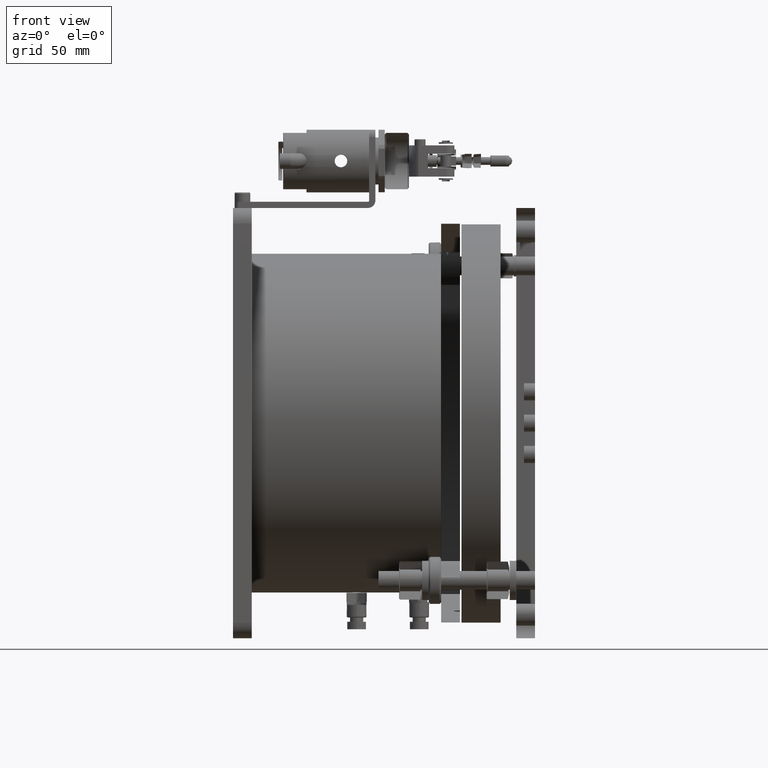
[diagram: clean part render]
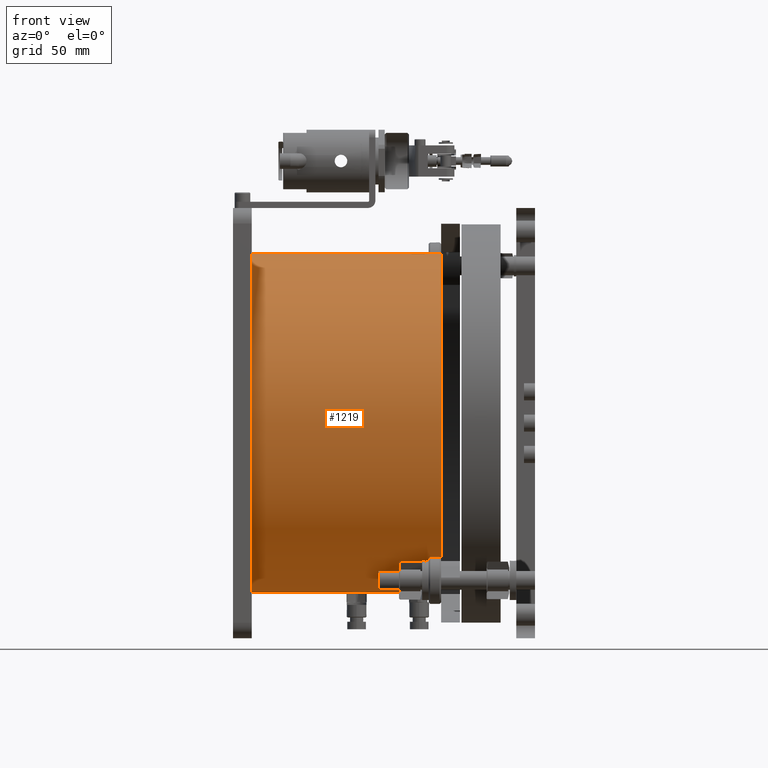
[diagram: same view with one face highlighted and labeled with its STEP entity id]
A machine part, front view. The second image highlights one B-rep face of the part: STEP entity #1219.
In plain terms, the highlighted cylindrical surface (bore or boss wall) has radius 108.25 mm, axis along (-1, -0, 0).
Its self-contained STEP definition (entity closure, byte-faithful):
#47 = ORIENTED_EDGE ( 'NONE', *, *, #12627, .T. ) ;
#77 = CARTESIAN_POINT ( 'NONE',  ( 700.2532529064187656, -11.07306532472164484, 426.0684939441116512 ) ) ;
#382 = B_SPLINE_CURVE_WITH_KNOTS ( 'NONE', 3,
 ( #11379, #17438, #11514, #15338, #19537, #23593, #17567, #19396, #1395, #21625, #25679, #15595, #9551, #9417, #5598, #3750, #25549, #9677 ),
 .UNSPECIFIED., .F., .F.,
 ( 4, 2, 2, 2, 2, 2, 2, 2, 4 ),
 ( 0.000000000000000000, 0.1250000000000000000, 0.2500000000000000000, 0.3750000000000000000, 0.5000000000000000000, 0.6250000000000000000, 0.7500000000000000000, 0.8750000000000000000, 1.000000000000000000 ),
 .UNSPECIFIED. ) ;
#425 = CARTESIAN_POINT ( 'NONE',  ( 690.2532529064185383, -11.07306532472163241, 317.8184939441116512 ) ) ;
#449 = B_SPLINE_CURVE_WITH_KNOTS ( 'NONE', 3,
 ( #2237, #6074, #21700, #17904, #11982, #11844, #3700, #11711, #20001, #5804, #18025, #24054, #18669, #18279, #6323, #20386, #10397, #6455 ),
 .UNSPECIFIED., .F., .F.,
 ( 4, 2, 2, 2, 2, 2, 2, 2, 4 ),
 ( 0.000000000000000000, 0.1250000000000000000, 0.2500000000000000000, 0.3750000000000000000, 0.5000000000000000000, 0.6250000000000000000, 0.7500000000000000000, 0.8750000000000000000, 1.000000000000000000 ),
 .UNSPECIFIED. ) ;
#599 = CARTESIAN_POINT ( 'NONE',  ( 645.7260323651624958, -7.072553334440932815, 317.8924411224286928 ) ) ;
#695 = CARTESIAN_POINT ( 'NONE',  ( 686.7871358114842906, -7.073580089219439593, 317.8924031563829544 ) ) ;
#1091 = CARTESIAN_POINT ( 'NONE',  ( 684.2326183006381370, -14.56557884291031613, 317.8746584292948114 ) ) ;
#1214 = CARTESIAN_POINT ( 'NONE',  ( 682.2532529064185383, -11.07306532472163241, 317.8184939441116512 ) ) ;
#1219 = ADVANCED_FACE ( 'NONE', ( #12040, #25948, #23594, #1649, #19788 ), #7967, .T. ) ;
#1395 = CARTESIAN_POINT ( 'NONE',  ( 647.7808918656851347, 97.10299870412202949, 430.0687028475880993 ) ) ;
#1439 = CARTESIAN_POINT ( 'NONE',  ( 650.2532529064185383, -11.60345801256245934, 317.8184939441116512 ) ) ;
#1649 = FACE_OUTER_BOUND ( 'NONE', #21337, .T. ) ;
#1690 = CARTESIAN_POINT ( 'NONE',  ( 643.8001588424508554, -14.27670912157059391, 317.8652607773717023 ) ) ;
#2237 = CARTESIAN_POINT ( 'NONE',  ( 643.2532529064185383, 97.17693467527836049, 426.0684939441120491 ) ) ;
#2506 = EDGE_LOOP ( 'NONE', ( #10524 ) ) ;
#2814 = CARTESIAN_POINT ( 'NONE',  ( 689.7458934701613771, -13.09361411960263766, 317.8362436395428858 ) ) ;
#2825 = VERTEX_POINT ( 'NONE', #17802 ) ;
#2881 = CARTESIAN_POINT ( 'NONE',  ( 700.2532529064187656, -11.07306532472164484, 534.3184939441116512 ) ) ;
#2922 = CARTESIAN_POINT ( 'NONE',  ( 685.7260323650199325, -7.072553334417378323, 317.8924411224295454 ) ) ;
#2937 = CARTESIAN_POINT ( 'NONE',  ( 685.2116492825764453, -14.97126875585755457, 317.8885156482574530 ) ) ;
#2985 = B_SPLINE_CURVE_WITH_KNOTS ( 'NONE', 3,
 ( #1214, #23022, #25384, #15162, #24989, #9238, #1091, #2937, #25243, #3326, #3201, #6889, #3069, #18962, #2814, #5296, #7405, #19091 ),
 .UNSPECIFIED., .F., .F.,
 ( 4, 2, 2, 2, 2, 2, 2, 2, 4 ),
 ( 0.000000000000000000, 0.1250000000000000000, 0.2500000000000000000, 0.3750000000000000000, 0.5000000000000000000, 0.6250000000000000000, 0.7500000000000000000, 0.8750000000000000000, 1.000000000000000000 ),
 .UNSPECIFIED. ) ;
#3069 = CARTESIAN_POINT ( 'NONE',  ( 688.7056298185452761, -14.27734918478035020, 317.8652780285796098 ) ) ;
#3125 = VERTEX_POINT ( 'NONE', #23241 ) ;
#3201 = CARTESIAN_POINT ( 'NONE',  ( 687.2920411004657808, -14.97207916232168934, 317.8885448993094656 ) ) ;
#3326 = CARTESIAN_POINT ( 'NONE',  ( 686.7818994696300479, -15.07332420306058651, 317.8924317631767735 ) ) ;
#3700 = CARTESIAN_POINT ( 'NONE',  ( 645.2347160620475961, 97.12072703863161394, 422.5746496025880106 ) ) ;
#3750 = CARTESIAN_POINT ( 'NONE',  ( 643.3548699813301255, 97.17303636025633296, 427.1098367668176365 ) ) ;
#4370 = CARTESIAN_POINT ( 'NONE',  ( 685.2145084821797809, -7.174106389974516773, 317.8885433857593057 ) ) ;
#4404 = CARTESIAN_POINT ( 'NONE',  ( 642.2532529064186519, -11.07306532472163241, 317.8184939441116512 ) ) ;
#4441 = EDGE_CURVE ( 'NONE', #21964, #3125, #14896, .T. ) ;
#4729 = EDGE_CURVE ( 'NONE', #9466, #17486, #449, .T. ) ;
#4787 = CARTESIAN_POINT ( 'NONE',  ( 649.7466672852682450, -9.053933375062566569, 317.8362189832459990 ) ) ;
#5079 = ORIENTED_EDGE ( 'NONE', *, *, #4729, .T. ) ;
#5296 = CARTESIAN_POINT ( 'NONE',  ( 690.1517810191671742, -12.11366428773421688, 317.8223864980630538 ) ) ;
#5598 = CARTESIAN_POINT ( 'NONE',  ( 643.7613382809771565, 97.15916100002374378, 428.0904013747540944 ) ) ;
#5710 = ORIENTED_EDGE ( 'NONE', *, *, #10242, .T. ) ;
#5804 = CARTESIAN_POINT ( 'NONE',  ( 647.7877025562813742, 97.10302369762209196, 422.0689609655674417 ) ) ;
#5908 = CARTESIAN_POINT ( 'NONE',  ( 648.2726707881683978, -14.56643781355083078, 317.8746862058860643 ) ) ;
#6074 = CARTESIAN_POINT ( 'NONE',  ( 643.2532529064186519, 97.17693467527836049, 425.5365772426230251 ) ) ;
#6323 = CARTESIAN_POINT ( 'NONE',  ( 650.7472016573398150, 97.15922796064094769, 424.0502917576282584 ) ) ;
#6394 = CARTESIAN_POINT ( 'NONE',  ( 645.2145084815258542, -7.174106390327147587, 317.8885433857472549 ) ) ;
#6416 = CARTESIAN_POINT ( 'NONE',  ( 651.2532526538038837, 97.17693466594387530, 426.0699155339273148 ) ) ;
#6455 = CARTESIAN_POINT ( 'NONE',  ( 651.2532526538038837, 97.17693466594387530, 426.0699155339273148 ) ) ;
#6738 = CARTESIAN_POINT ( 'NONE',  ( 689.7466672840281490, -9.053933373649273975, 317.8362189832660079 ) ) ;
#6774 = CARTESIAN_POINT ( 'NONE',  ( 649.4582030330464022, -8.621708062616384893, 317.8456029818654542 ) ) ;
#6889 = CARTESIAN_POINT ( 'NONE',  ( 688.2726707878020989, -14.56643781361975698, 317.8746862058885085 ) ) ;
#6935 = EDGE_LOOP ( 'NONE', ( #47, #19929 ) ) ;
#7037 = DIRECTION ( 'NONE',  ( 0.000000000000000000, 0.000000000000000000, 1.000000000000000000 ) ) ;
#7158 = CARTESIAN_POINT ( 'NONE',  ( 579.2532529064187656, -11.07306532472164484, 426.0684939441116512 ) ) ;
#7260 = EDGE_CURVE ( 'NONE', #17486, #9466, #382, .T. ) ;
#7405 = CARTESIAN_POINT ( 'NONE',  ( 690.2532529064188793, -11.60345801184056569, 317.8184939441116512 ) ) ;
#7660 = AXIS2_PLACEMENT_3D ( 'NONE', #77, #8100, #25818 ) ;
#7750 = CARTESIAN_POINT ( 'NONE',  ( 649.7458934701612634, -13.09361411888082039, 317.8362436395325972 ) ) ;
#7967 = CYLINDRICAL_SURFACE ( 'NONE', #7660, 108.2500000000000142 ) ;
#8100 = DIRECTION ( 'NONE',  ( -1.000000000000000000, -4.379057701015054319E-47, 6.008901426488168198E-32 ) ) ;
#8355 = CARTESIAN_POINT ( 'NONE',  ( 648.2772941819438302, -7.582448135356381513, 317.8745960940942155 ) ) ;
#8447 = CARTESIAN_POINT ( 'NONE',  ( 688.2772941820876440, -7.582448135333192063, 317.8745960940950681 ) ) ;
#8710 = CARTESIAN_POINT ( 'NONE',  ( 682.7634336881162653, -9.047245770392375874, 317.8363367705403562 ) ) ;
#9238 = CARTESIAN_POINT ( 'NONE',  ( 683.8001588424506281, -14.27670912157050154, 317.8652607773715886 ) ) ;
#9417 = CARTESIAN_POINT ( 'NONE',  ( 644.0501633663981238, 97.14976826451520253, 428.5223453299533389 ) ) ;
#9466 = VERTEX_POINT ( 'NONE', #18249 ) ;
#9551 = CARTESIAN_POINT ( 'NONE',  ( 644.8000052359938081, 97.13017195237284795, 429.2720137995572713 ) ) ;
#9677 = CARTESIAN_POINT ( 'NONE',  ( 643.2532529064185383, 97.17693467527836049, 426.0684939441120491 ) ) ;
#9749 = EDGE_LOOP ( 'NONE', ( #21760, #5079 ) ) ;
#10242 = EDGE_CURVE ( 'NONE', #3125, #21964, #2985, .T. ) ;
#10397 = CARTESIAN_POINT ( 'NONE',  ( 651.2534410396820022, 97.17694162708443173, 425.5398445841693160 ) ) ;
#10524 = ORIENTED_EDGE ( 'NONE', *, *, #24467, .T. ) ;
#10552 = CARTESIAN_POINT ( 'NONE',  ( 683.0518780872037041, -8.617037636858086103, 317.8457112170919459 ) ) ;
#11054 = B_SPLINE_CURVE_WITH_KNOTS ( 'NONE', 3,
 ( #14667, #18344, #20445, #4787, #6774, #20825, #8355, #24361, #14796, #599, #6394, #14412, #12690, #12824, #22397, #24875, #20694, #4404 ),
 .UNSPECIFIED., .F., .F.,
 ( 4, 2, 2, 2, 2, 2, 2, 2, 4 ),
 ( 0.000000000000000000, 0.1250000000000000000, 0.2500000000000000000, 0.3750000000000000000, 0.5000000000000000000, 0.6250000000000000000, 0.7500000000000000000, 0.8750000000000000000, 1.000000000000000000 ),
 .UNSPECIFIED. ) ;
#11289 = CARTESIAN_POINT ( 'NONE',  ( 650.2532529064185383, -11.07306532472163241, 317.8184939441116512 ) ) ;
#11379 = CARTESIAN_POINT ( 'NONE',  ( 651.2532526538038837, 97.17693466594387530, 426.0699155339273148 ) ) ;
#11514 = CARTESIAN_POINT ( 'NONE',  ( 651.1515679928241980, 97.17303491980662500, 427.1099717196890424 ) ) ;
#11556 = CARTESIAN_POINT ( 'NONE',  ( 648.7056298188458641, -14.27734918477695558, 317.8652780285794393 ) ) ;
#11604 = DIRECTION ( 'NONE',  ( -1.000000000000000000, -4.379057701015054319E-47, 6.008901426488168198E-32 ) ) ;
#11711 = CARTESIAN_POINT ( 'NONE',  ( 646.2155082878143730, 97.10687190121917922, 422.1691560466356350 ) ) ;
#11844 = CARTESIAN_POINT ( 'NONE',  ( 644.8023228714886272, 97.13011737049934879, 422.8631512562729995 ) ) ;
#11982 = CARTESIAN_POINT ( 'NONE',  ( 644.0518408640415373, 97.14971846966072633, 423.6124738065262250 ) ) ;
#11984 = CIRCLE ( 'NONE', #16186, 108.2500000000000142 ) ;
#12040 = FACE_OUTER_BOUND ( 'NONE', #2506, .T. ) ;
#12403 = CARTESIAN_POINT ( 'NONE',  ( 683.8017825756013508, -7.868232502931086891, 317.8652970423210604 ) ) ;
#12627 = EDGE_CURVE ( 'NONE', #18600, #2825, #11054, .T. ) ;
#12690 = CARTESIAN_POINT ( 'NONE',  ( 643.8017825759028483, -7.868232502929709327, 317.8652970423211173 ) ) ;
#12824 = CARTESIAN_POINT ( 'NONE',  ( 643.0518780869024340, -8.617037636859464556, 317.8457112170917753 ) ) ;
#13324 = EDGE_CURVE ( 'NONE', #2825, #18600, #17916, .T. ) ;
#13409 = CARTESIAN_POINT ( 'NONE',  ( 647.2920411000997092, -14.97207916239061376, 317.8885448993119098 ) ) ;
#13533 = VERTEX_POINT ( 'NONE', #25321 ) ;
#13677 = CARTESIAN_POINT ( 'NONE',  ( 645.7217622965218879, -15.07280594086863701, 317.8924125995242775 ) ) ;
#14379 = CARTESIAN_POINT ( 'NONE',  ( 688.7091348358393361, -7.871548943158642508, 317.8651965197195182 ) ) ;
#14412 = CARTESIAN_POINT ( 'NONE',  ( 644.2347250561241481, -7.579251691576030403, 317.8747009156798526 ) ) ;
#14637 = CARTESIAN_POINT ( 'NONE',  ( 684.2347250554703351, -7.579251691928755363, 317.8747009156678587 ) ) ;
#14667 = CARTESIAN_POINT ( 'NONE',  ( 650.2532529064185383, -11.07306532472163241, 317.8184939441116512 ) ) ;
#14796 = CARTESIAN_POINT ( 'NONE',  ( 646.7871358113418410, -7.073580089195978360, 317.8924031563838639 ) ) ;
#14896 = B_SPLINE_CURVE_WITH_KNOTS ( 'NONE', 3,
 ( #425, #18564, #22752, #6738, #22619, #14379, #8447, #22361, #695, #2922, #4370, #14637, #12403, #10552, #8710, #16474, #20416, #22494 ),
 .UNSPECIFIED., .F., .F.,
 ( 4, 2, 2, 2, 2, 2, 2, 2, 4 ),
 ( 0.000000000000000000, 0.1250000000000000000, 0.2500000000000000000, 0.3750000000000000000, 0.5000000000000000000, 0.6250000000000000000, 0.7500000000000000000, 0.8750000000000000000, 1.000000000000000000 ),
 .UNSPECIFIED. ) ;
#15102 = VERTEX_POINT ( 'NONE', #2881 ) ;
#15162 = CARTESIAN_POINT ( 'NONE',  ( 682.7612090427101066, -13.09466758518914631, 317.8362640474380783 ) ) ;
#15338 = CARTESIAN_POINT ( 'NONE',  ( 650.7451495015588989, 97.15915950903146836, 428.0904735783814772 ) ) ;
#15595 = CARTESIAN_POINT ( 'NONE',  ( 645.2321525077853721, 97.12077756079632707, 429.5607804747882597 ) ) ;
#15670 = EDGE_LOOP ( 'NONE', ( #16867, #5710 ) ) ;
#15781 = CARTESIAN_POINT ( 'NONE',  ( 650.2532529064185383, -11.07306532472163241, 317.8184939441116512 ) ) ;
#15795 = EDGE_CURVE ( 'NONE', #15102, #15102, #22285, .T. ) ;
#15905 = CARTESIAN_POINT ( 'NONE',  ( 645.2116492826332887, -14.97126875588119432, 317.8885156482582488 ) ) ;
#16186 = AXIS2_PLACEMENT_3D ( 'NONE', #7158, #16903, #7037 ) ;
#16474 = CARTESIAN_POINT ( 'NONE',  ( 682.3552890627580609, -10.02957527763019030, 317.8224089348469192 ) ) ;
#16867 = ORIENTED_EDGE ( 'NONE', *, *, #4441, .T. ) ;
#16903 = DIRECTION ( 'NONE',  ( 1.000000000000000000, 4.379057701015054319E-47, -6.008901426488168198E-32 ) ) ;
#17438 = CARTESIAN_POINT ( 'NONE',  ( 651.2530641990451841, 97.17692770225806953, 426.6001802978884712 ) ) ;
#17486 = VERTEX_POINT ( 'NONE', #6416 ) ;
#17567 = CARTESIAN_POINT ( 'NONE',  ( 649.2713503840290059, 97.12072147625904961, 429.5624979445256599 ) ) ;
#17802 = CARTESIAN_POINT ( 'NONE',  ( 642.2532529064186519, -11.07306532472163241, 317.8184939441116512 ) ) ;
#17876 = CARTESIAN_POINT ( 'NONE',  ( 642.2532529064186519, -11.07306532472163241, 317.8184939441116512 ) ) ;
#17904 = CARTESIAN_POINT ( 'NONE',  ( 643.7627607605721778, 97.15911397774341651, 424.0442873842100653 ) ) ;
#17916 = B_SPLINE_CURVE_WITH_KNOTS ( 'NONE', 3,
 ( #17876, #25864, #19703, #23635, #25985, #1690, #21534, #15905, #13677, #23892, #13409, #5908, #11556, #21925, #7750, #19440, #1439, #15781 ),
 .UNSPECIFIED., .F., .F.,
 ( 4, 2, 2, 2, 2, 2, 2, 2, 4 ),
 ( 0.000000000000000000, 0.1250000000000000000, 0.2500000000000000000, 0.3750000000000000000, 0.5000000000000000000, 0.6250000000000000000, 0.7500000000000000000, 0.8750000000000000000, 1.000000000000000000 ),
 .UNSPECIFIED. ) ;
#18025 = CARTESIAN_POINT ( 'NONE',  ( 648.2988428521264268, 97.10695312092677511, 422.1713763421752219 ) ) ;
#18249 = CARTESIAN_POINT ( 'NONE',  ( 643.2532529064185383, 97.17693467527836049, 426.0684939441120491 ) ) ;
#18279 = CARTESIAN_POINT ( 'NONE',  ( 650.4587582971093980, 97.14984180069997421, 423.6178556955022145 ) ) ;
#18344 = CARTESIAN_POINT ( 'NONE',  ( 650.2532529064185383, -10.54312496310996750, 317.8184939441116512 ) ) ;
#18564 = CARTESIAN_POINT ( 'NONE',  ( 690.2532529064186519, -10.54312496152494738, 317.8184939441116512 ) ) ;
#18600 = VERTEX_POINT ( 'NONE', #11289 ) ;
#18669 = CARTESIAN_POINT ( 'NONE',  ( 649.7100846154799001, 97.13025530756461023, 422.8677661128459704 ) ) ;
#18680 = CARTESIAN_POINT ( 'NONE',  ( 690.2532529064185383, -11.07306532472163241, 317.8184939441116512 ) ) ;
#18962 = CARTESIAN_POINT ( 'NONE',  ( 689.4564118329577695, -13.52695381777895633, 317.8456599358361814 ) ) ;
#19091 = CARTESIAN_POINT ( 'NONE',  ( 690.2532529064185383, -11.07306532472163241, 317.8184939441116512 ) ) ;
#19396 = CARTESIAN_POINT ( 'NONE',  ( 648.2917131859256870, 97.10688136642603752, 429.9675579589006134 ) ) ;
#19440 = CARTESIAN_POINT ( 'NONE',  ( 650.1517810191671742, -12.11366428845603771, 317.8223864980732856 ) ) ;
#19537 = CARTESIAN_POINT ( 'NONE',  ( 650.4556396132805958, 97.14974682658920813, 428.5233194733394839 ) ) ;
#19703 = CARTESIAN_POINT ( 'NONE',  ( 642.3551359014422815, -12.11504305168461215, 317.8224004971749537 ) ) ;
#19788 = FACE_BOUND ( 'NONE', #9749, .T. ) ;
#19929 = ORIENTED_EDGE ( 'NONE', *, *, #13324, .T. ) ;
#20001 = CARTESIAN_POINT ( 'NONE',  ( 646.7269023167124260, 97.10298931135739053, 422.0680310223312972 ) ) ;
#20386 = CARTESIAN_POINT ( 'NONE',  ( 651.1522685175646075, 97.17306045763446321, 425.0298876738551712 ) ) ;
#20416 = CARTESIAN_POINT ( 'NONE',  ( 682.2532529064186519, -10.54114196925071845, 317.8184939441116512 ) ) ;
#20445 = CARTESIAN_POINT ( 'NONE',  ( 650.1518538657696809, -10.03309458898439388, 317.8223822453381899 ) ) ;
#20694 = CARTESIAN_POINT ( 'NONE',  ( 642.2532529064186519, -10.54114196997732300, 317.8184939441117081 ) ) ;
#20780 = DIRECTION ( 'NONE',  ( 0.000000000000000000, 0.000000000000000000, 1.000000000000000000 ) ) ;
#20825 = CARTESIAN_POINT ( 'NONE',  ( 648.7091348362722556, -7.871548943421430522, 317.8651965197126970 ) ) ;
#21337 = EDGE_LOOP ( 'NONE', ( #24723 ) ) ;
#21534 = CARTESIAN_POINT ( 'NONE',  ( 644.2326183005807252, -14.56557884288667992, 317.8746584292939019 ) ) ;
#21625 = CARTESIAN_POINT ( 'NONE',  ( 646.7213491715710916, 97.10301419529881173, 430.0682839038665293 ) ) ;
#21700 = CARTESIAN_POINT ( 'NONE',  ( 643.3560980795072055, 97.17299291135687156, 425.0230633583720987 ) ) ;
#21760 = ORIENTED_EDGE ( 'NONE', *, *, #7260, .T. ) ;
#21886 = AXIS2_PLACEMENT_3D ( 'NONE', #22219, #11604, #20780 ) ;
#21925 = CARTESIAN_POINT ( 'NONE',  ( 649.4564118326568405, -13.52695381778235451, 317.8456599358362951 ) ) ;
#21964 = VERTEX_POINT ( 'NONE', #18680 ) ;
#22219 = CARTESIAN_POINT ( 'NONE',  ( 700.2532529064187656, -11.07306532472164484, 426.0684939441116512 ) ) ;
#22285 = CIRCLE ( 'NONE', #21886, 108.2500000000000142 ) ;
#22361 = CARTESIAN_POINT ( 'NONE',  ( 687.2976733353840473, -7.175547244152641113, 317.8884898160182502 ) ) ;
#22397 = CARTESIAN_POINT ( 'NONE',  ( 642.7634336881160380, -9.047245769665845927, 317.8363367705507017 ) ) ;
#22494 = CARTESIAN_POINT ( 'NONE',  ( 682.2532529064185383, -11.07306532472163241, 317.8184939441116512 ) ) ;
#22619 = CARTESIAN_POINT ( 'NONE',  ( 689.4582030334794354, -8.621708062879074319, 317.8456029818585762 ) ) ;
#22752 = CARTESIAN_POINT ( 'NONE',  ( 690.1518538670102316, -10.03309459039768470, 317.8223822453182379 ) ) ;
#23022 = CARTESIAN_POINT ( 'NONE',  ( 682.2532529064187656, -11.60384480572638033, 317.8184939441116512 ) ) ;
#23241 = CARTESIAN_POINT ( 'NONE',  ( 682.2532529064185383, -11.07306532472163241, 317.8184939441116512 ) ) ;
#23593 = CARTESIAN_POINT ( 'NONE',  ( 649.7048765130189167, 97.13013258889648682, 429.2733651713607514 ) ) ;
#23594 = FACE_BOUND ( 'NONE', #15670, .T. ) ;
#23635 = CARTESIAN_POINT ( 'NONE',  ( 642.7612090432211289, -13.09466758570004252, 317.8362640474452974 ) ) ;
#23892 = CARTESIAN_POINT ( 'NONE',  ( 646.7818994694877119, -15.07332420303688636, 317.8924317631757503 ) ) ;
#24054 = CARTESIAN_POINT ( 'NONE',  ( 649.2777709374245205, 97.12084156026844539, 422.5781602256465703 ) ) ;
#24361 = CARTESIAN_POINT ( 'NONE',  ( 647.2976733355280885, -7.175547244129449886, 317.8884898160189323 ) ) ;
#24467 = EDGE_CURVE ( 'NONE', #13533, #13533, #11984, .T. ) ;
#24723 = ORIENTED_EDGE ( 'NONE', *, *, #15795, .T. ) ;
#24875 = CARTESIAN_POINT ( 'NONE',  ( 642.3552890627579472, -10.02957527835672025, 317.8224089348366306 ) ) ;
#24989 = CARTESIAN_POINT ( 'NONE',  ( 683.0505121917364022, -13.52729506451286667, 317.8456693750895852 ) ) ;
#25243 = CARTESIAN_POINT ( 'NONE',  ( 685.7217622963797794, -15.07280594084493686, 317.8924125995234249 ) ) ;
#25321 = CARTESIAN_POINT ( 'NONE',  ( 579.2532529064187656, -11.07306532472164484, 534.3184939441116512 ) ) ;
#25384 = CARTESIAN_POINT ( 'NONE',  ( 682.3551359019530764, -12.11504305219550659, 317.8224004971822865 ) ) ;
#25549 = CARTESIAN_POINT ( 'NONE',  ( 643.2532529064186519, 97.17693467527836049, 426.5992800470330621 ) ) ;
#25679 = CARTESIAN_POINT ( 'NONE',  ( 646.2111321508155015, 97.10691951353979334, 429.9665170253695692 ) ) ;
#25818 = DIRECTION ( 'NONE',  ( 0.000000000000000000, 0.000000000000000000, 1.000000000000000000 ) ) ;
#25864 = CARTESIAN_POINT ( 'NONE',  ( 642.2532529064186519, -11.60384480644881577, 317.8184939441116512 ) ) ;
#25948 = FACE_BOUND ( 'NONE', #6935, .T. ) ;
#25985 = CARTESIAN_POINT ( 'NONE',  ( 643.0505121917362885, -13.52729506451277075, 317.8456693750896420 ) ) ;